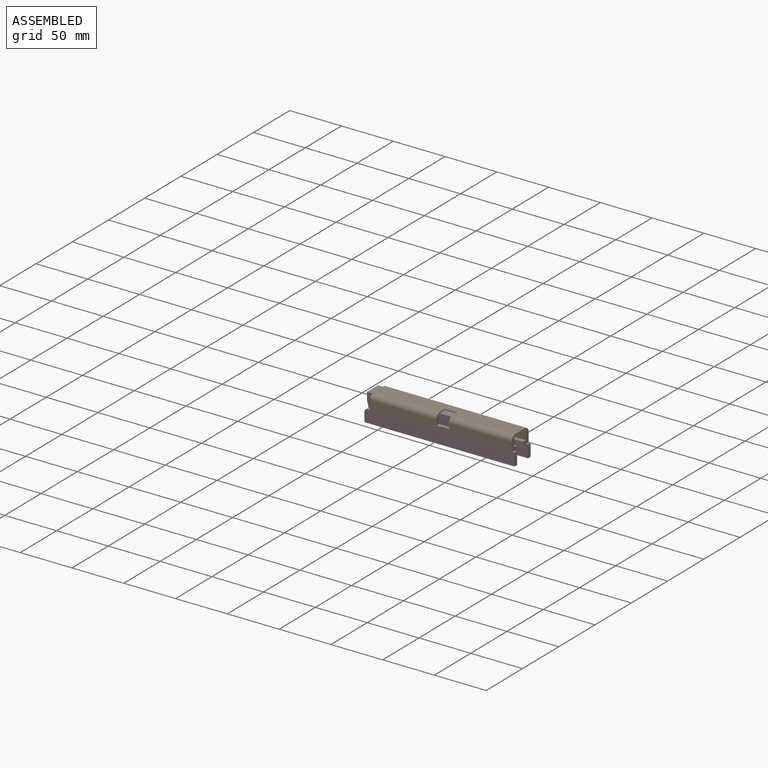
[diagram: assembled view]
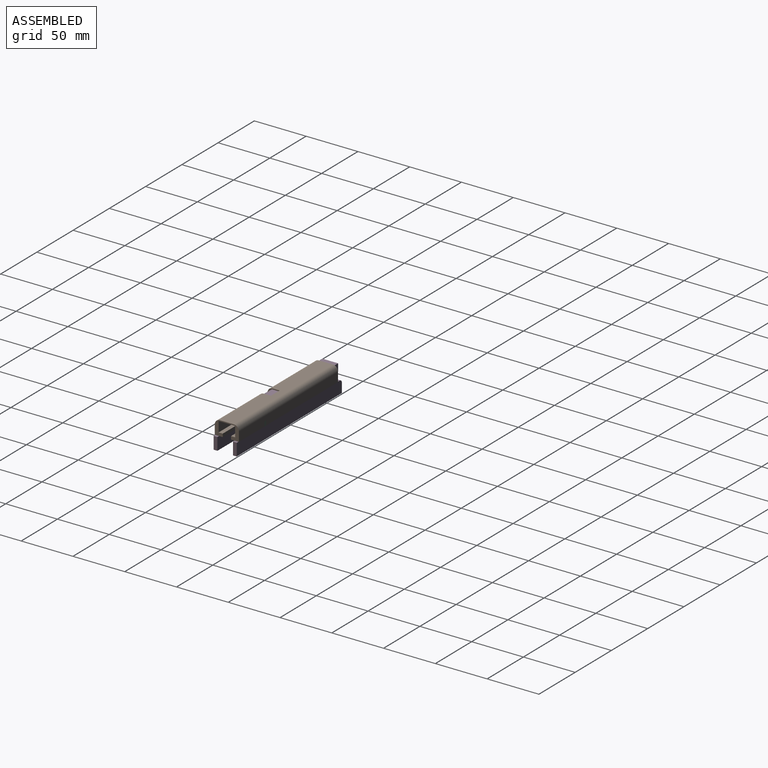
[diagram: assembled view, second angle]
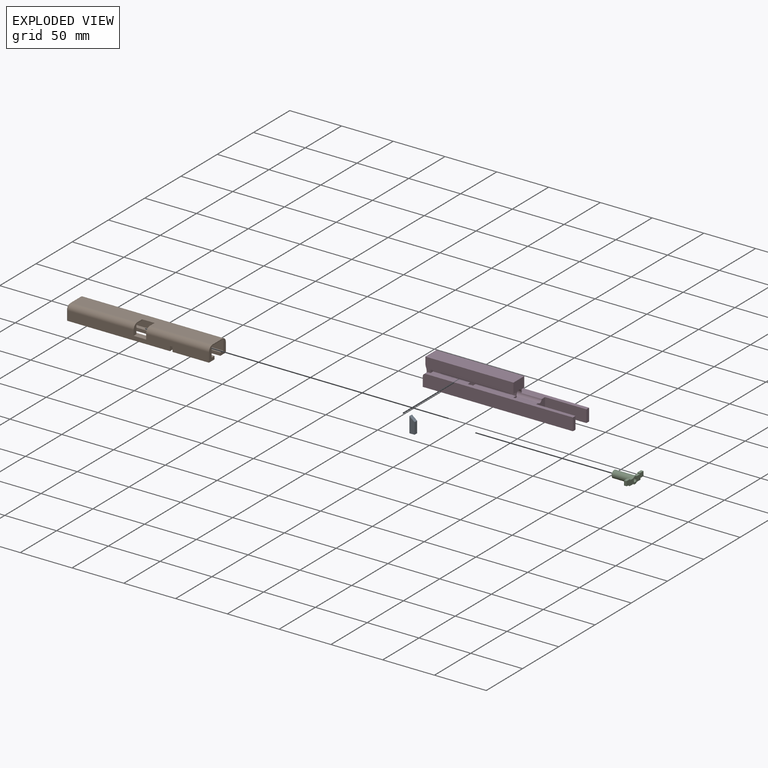
[diagram: exploded view]
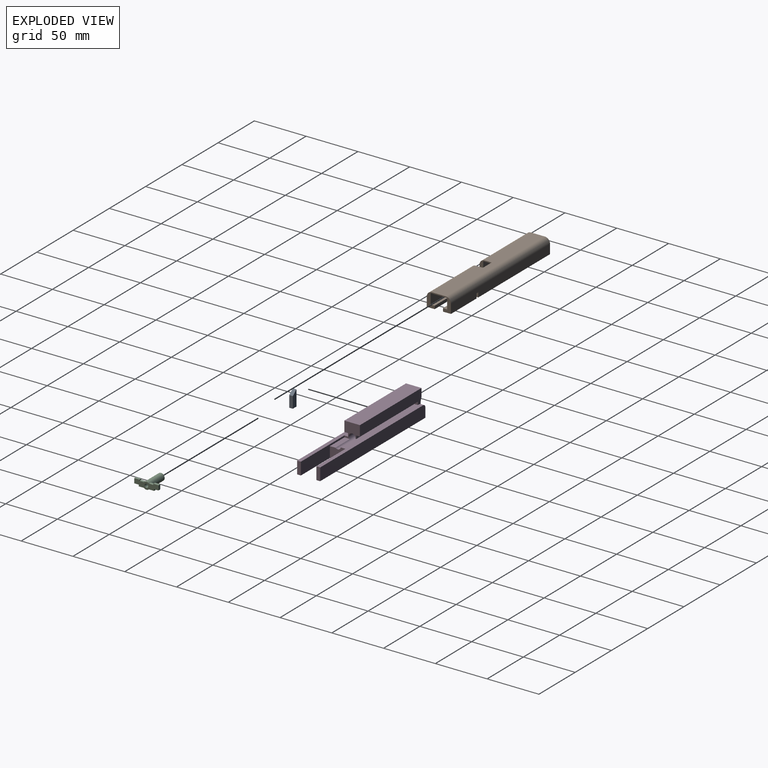
[diagram: exploded view, second angle]
ASSEMBLY  parts=4 mates=3
PART A: 6 faces, bbox 3.5x5x15 mm
  f0: plane 15x3.5mm, normal (0,-1,0), area 52.5mm2, adj f1,f3,f4,f5
  f1: plane 5x3.5mm, normal (0,0,-1), area 17.5mm2, adj f0,f2,f4,f5
  f2: plane 11x3.5mm, normal (0,1,0), area 38.5mm2, adj f1,f3,f4,f5
  f3: plane 5x4mm, normal (0,0.62,0.78), area 22.4mm2, adj f0,f2,f4,f5
  f4: plane 15x5mm, normal (1,0,0), area 65mm2, adj f0,f1,f2,f3
  f5: plane 15x5mm, normal (-1,0,0), area 65mm2, adj f0,f1,f2,f3
PART B: 55 faces, bbox 137.7x23.3x14 mm
  f0: plane 35x3mm, normal (0,1,0), area 104.9mm2, adj f2,f10,f14,f52,f53
  f1: plane 60x4mm, normal (0,0,1), area 240mm2, adj f7,f13,f18,f51
  f2: plane 100x7.67mm, normal (0,0,-1), area 742.2mm2, adj f0,f6,f7,f10,f13,f18,f26,f53
  f3: plane 16x9.5mm, normal (1,0,0), area 146.2mm2, adj f31,f32,f33,f34,f35,f36,f37,f43
  f4: plane 7.67x4.5mm, normal (1,0,0), area 28.5mm2, adj f11,f12,f15,f16,f17,f37
  f5: plane 136.7x13.33mm, normal (0,0,1), area 1742.7mm2, adj f9,f20,f21,f24,f28,f29,f30,f49
  f6: plane 136.7x9mm, normal (0,-1,0), area 1159.1mm2, adj f2,f9,f18,f21,f26,f27,f29,f30
  f7: plane 100x13mm, normal (0,1,0), area 907.2mm2, adj f1,f2,f8,f10,f14,f18,f25,f27
  f8: plane 100x16mm, normal (0,0,-1), area 1503.8mm2, adj f7,f15,f23,f24,f25,f28,f29,f30
  f9: cylinder r=5mm len=64mm, axis (1,0,0), area 502.7mm2, adj f5,f6,f25,f29
  f10: plane 12.77x6.67mm, normal (-1,0,0), area 43.3mm2, adj f0,f2,f7,f14,f25,f26
  f11: plane 100x7.67mm, normal (0,0,-1), area 766.2mm2, adj f4,f12,f17,f19,f22
  f12: plane 136.7x9mm, normal (0,1,0), area 1219mm2, adj f4,f11,f20,f22,f37,f48,f49,f50
  f13: plane 60x3mm, normal (0,1,0), area 179.9mm2, adj f1,f2,f18,f51,f54
  f14: plane 35x4mm, normal (0,0,1), area 140mm2, adj f0,f7,f10,f52
  f15: plane 100x10mm, normal (0,-1,0), area 1000mm2, adj f4,f8,f16,f19,f23,f38
  f16: plane 100x4mm, normal (0,0,1), area 400mm2, adj f4,f15,f17,f19
  f17: plane 100x3mm, normal (0,-1,0), area 300mm2, adj f4,f11,f16,f19
  f18: plane 7.67x4.5mm, normal (1,0,0), area 28.5mm2, adj f1,f2,f6,f7,f13,f31
  f19: plane 12.77x6.67mm, normal (-1,0,0), area 43.3mm2, adj f11,f15,f16,f17,f22,f23
  f20: cylinder r=5mm len=136.7mm, axis (-1,0,0), area 1073.6mm2, adj f5,f12,f23,f49
  f21: cylinder r=5mm len=60.7mm, axis (1,0,0), area 476.7mm2, adj f5,f6,f30,f49
  f22: plane 9x1mm, normal (-0.71,0.71,0), area 12.7mm2, adj f11,f12,f19,f23
  f23: cone r=4mm half-angle=45deg, axis (1,0,0), area 9.9mm2, adj f8,f15,f19,f20,f22,f24
  f24: plane 13.33x1mm, normal (-0.71,0,0.71), area 18.9mm2, adj f5,f8,f23,f25
  f25: cone r=4mm half-angle=45deg, axis (1,0,0), area 9.9mm2, adj f7,f8,f9,f10,f24,f26
  f26: plane 9x1mm, normal (-0.71,-0.71,0), area 12.7mm2, adj f2,f6,f10,f25
  f27: plane 12x3.67mm, normal (0,0,1), area 44mm2, adj f6,f7,f29,f30
  f28: plane 12x1mm, normal (0,-1,0), area 12mm2, adj f5,f8,f29,f30
  f29: plane 11.67x10mm, normal (1,0,0), area 39.3mm2, adj f5,f6,f7,f8,f9,f27,f28
  f30: plane 11.67x10mm, normal (-1,0,0), area 39.3mm2, adj f5,f6,f7,f8,f21,f27,f28
  f31: plane 5x2.5mm, normal (0,0,-1), area 12.5mm2, adj f3,f6,f18,f32,f38,f39
  f32: plane 2.5x1mm, normal (0,-1,0), area 2.5mm2, adj f3,f31,f33,f38
  f33: plane 4.32x2.5mm, normal (0,0,-1), area 10.8mm2, adj f3,f32,f34,f38
  f34: cylinder r=3.3mm len=4.69mm, axis (-1,0,0), area 13.1mm2, adj f3,f33,f35,f38
  f35: plane 4.32x2.5mm, normal (0,0,-1), area 10.8mm2, adj f3,f34,f36,f38
  f36: plane 2.5x1mm, normal (0,1,0), area 2.5mm2, adj f3,f35,f37,f38
  f37: plane 5x2.5mm, normal (0,0,-1), area 12.5mm2, adj f3,f4,f12,f36,f38,f50
  f38: plane 16x9.5mm, normal (-1,0,0), area 146.2mm2, adj f7,f8,f15,f31,f32,f33,f34,f35
  f39: plane 7.67x4.5mm, normal (-1,0,0), area 28.5mm2, adj f6,f31,f40,f41,f42,f43
  f40: plane 35.2x7.67mm, normal (0,0,-1), area 269.9mm2, adj f6,f39,f41,f49
  f41: plane 35.2x3mm, normal (0,1,0), area 105.6mm2, adj f39,f40,f42,f49
  f42: plane 35.2x4mm, normal (0,0,1), area 140.8mm2, adj f39,f41,f43,f49
  f43: plane 35.2x10mm, normal (0,1,0), area 352mm2, adj f3,f39,f42,f44,f49
  f44: plane 35.2x16mm, normal (0,0,-1), area 563.2mm2, adj f3,f43,f45,f49
  f45: plane 35.2x10mm, normal (0,-1,0), area 352mm2, adj f3,f44,f46,f49,f50
  f46: plane 35.2x4mm, normal (0,0,1), area 140.8mm2, adj f45,f47,f49,f50
  f47: plane 35.2x3mm, normal (0,-1,0), area 105.6mm2, adj f46,f48,f49,f50
  f48: plane 35.2x7.67mm, normal (0,0,-1), area 269.9mm2, adj f12,f47,f49,f50
  f49: plane 23.33x14mm, normal (1,0,0), area 131.9mm2, adj f5,f6,f12,f20,f21,f40,f41,f42
  f50: plane 7.67x4.5mm, normal (-1,0,0), area 28.5mm2, adj f12,f37,f45,f46,f47,f48
  f51: plane 4x2.5mm, normal (-1,0,0), area 10mm2, adj f1,f7,f13,f54
  f52: plane 4x2.5mm, normal (1,0,0), area 10mm2, adj f0,f7,f14,f53
  f53: plane 4x0.5mm, normal (0.71,0,-0.71), area 2.8mm2, adj f0,f2,f7,f52
  f54: plane 4x0.5mm, normal (-0.71,0,-0.71), area 2.8mm2, adj f2,f7,f13,f51
PART C: 24 faces, bbox 23.3x7x20.3 mm
  f0: plane 5.9x5.9mm, normal (0,0,1), area 7.7mm2, adj f20,f22
  f1: plane 9.22x6mm, normal (0,0,1), area 41.1mm2, adj f2,f3,f4,f5,f6,f14,f15,f16
  f2: plane 5x2.5mm, normal (0,1,0), area 12.5mm2, adj f1,f3,f16,f19
  f3: plane 4.5x2.5mm, normal (-1,0,0), area 11.3mm2, adj f1,f2,f4,f19
  f4: plane 4.25x2.5mm, normal (0,-1,0), area 10.6mm2, adj f1,f3,f5,f19
  f5: plane 2.5x1.5mm, normal (-1,0,0), area 3.8mm2, adj f1,f4,f6,f19
  f6: plane 4.97x2.5mm, normal (0,-1,0), area 12.4mm2, adj f1,f5,f14,f19
  f7: plane 4.97x2.5mm, normal (0,-1,0), area 12.4mm2, adj f8,f14,f18,f19
  f8: plane 2.5x1.5mm, normal (1,0,0), area 3.8mm2, adj f7,f9,f18,f19
  f9: plane 4.25x2.5mm, normal (0,-1,0), area 10.6mm2, adj f8,f10,f18,f19
  f10: plane 4.5x2.5mm, normal (1,0,0), area 11.2mm2, adj f9,f11,f18,f19
  f11: plane 5x2.5mm, normal (0,1,0), area 12.5mm2, adj f10,f12,f18,f19
  f12: plane 2.5x1mm, normal (-1,0,0), area 2.5mm2, adj f11,f13,f18,f19
  f13: plane 4.22x2.5mm, normal (0,1,0), area 10.5mm2, adj f12,f14,f18,f19
  f14: cylinder r=3.5mm len=20.25mm, axis (0,0,-1), area 417.5mm2, adj f1,f6,f7,f13,f15,f18,f19,f23
  f15: plane 4.22x2.5mm, normal (0,1,0), area 10.5mm2, adj f1,f14,f16,f19
  f16: plane 2.5x1mm, normal (1,0,0), area 2.5mm2, adj f1,f2,f15,f19
  f17: cylinder r=1.75mm len=11.25mm, axis (0,0,-1), area 123.7mm2, adj f19,f21
  f18: plane 9.22x6mm, normal (0,0,1), area 41.1mm2, adj f7,f8,f9,f10,f11,f12,f13,f14
  f19: plane 23.33x7mm, normal (0,0,-1), area 111mm2, adj f2,f3,f4,f5,f6,f7,f8,f9
  f20: cylinder r=2.5mm len=8.75mm, axis (0,0,-1), area 137.4mm2, adj f0,f21
  f21: plane 5x5mm, normal (0,0,1), area 10mm2, adj f17,f20
  f22: cylinder r=2.95mm len=17.75mm, axis (0,0,-1), area 329mm2, adj f0,f23
  f23: plane 7x7mm, normal (0,0,1), area 11.1mm2, adj f14,f22
PART D: 37 faces, bbox 145.2x22.5x25.2 mm
  f0: plane 145x22.33mm, normal (0,0,-1), area 2620.6mm2, adj f3,f4,f7,f13,f19,f25,f26,f27
  f1: plane 85.16x13.79mm, normal (0,-1,0), area 860.9mm2, adj f5,f6,f8,f13,f14,f15,f21,f23
  f2: plane 85.16x13.79mm, normal (0,1,0), area 860.9mm2, adj f5,f9,f12,f13,f15,f16,f21,f23
  f3: plane 14.99x12mm, normal (1,0,0), area 160.9mm2, adj f0,f9,f18,f19,f20,f25
  f4: plane 22.33x9mm, normal (-1,0,0), area 126.3mm2, adj f0,f22,f24,f26,f29,f30,f32,f33
  f5: plane 85x15mm, normal (0,0,1), area 1275mm2, adj f1,f2,f13,f15
  f6: plane 80x3.5mm, normal (0,0,-1), area 280mm2, adj f1,f7,f13,f14
  f7: plane 80x15mm, normal (0,-1,0), area 300mm2, adj f0,f6,f8,f13,f14,f34,f35
  f8: plane 142x7.17mm, normal (0,0,1), area 783.2mm2, adj f1,f7,f13,f14,f28,f30,f31,f32
  f9: plane 142x8.21mm, normal (0,0,1), area 891.5mm2, adj f2,f3,f10,f13,f16,f17,f20,f25
  f10: plane 80x3mm, normal (0,1,0), area 240mm2, adj f9,f12,f13,f16
  f11: cylinder r=3.25mm len=79.5mm, axis (-1,0,0), area 1623.4mm2, adj f13,f17,f21
  f12: plane 80x3.5mm, normal (0,0,-1), area 280mm2, adj f2,f10,f13,f16
  f13: plane 25x15mm, normal (1,0,0), area 161.7mm2, adj f0,f1,f2,f5,f6,f7,f8,f9
  f14: plane 3.5x3mm, normal (1,0,0), area 10.5mm2, adj f1,f6,f7,f8
  f15: plane 15x6.54mm, normal (-1,0,0), area 60.3mm2, adj f1,f2,f5,f23
  f16: plane 3.5x3mm, normal (1,0,0), area 10.5mm2, adj f2,f9,f10,f12
  f17: plane 5.67x2.75mm, normal (-1,0,0), area 1.7mm2, adj f9,f11,f18,f20
  f18: plane 20x5.37mm, normal (0,0,1), area 107.4mm2, adj f3,f13,f17,f19,f20
  f19: plane 20x10.38mm, normal (0,-1,0), area 207.6mm2, adj f0,f3,f13,f18
  f20: cylinder r=3mm len=20mm, axis (-1,0,0), area 131.3mm2, adj f3,f9,f17,f18
  f21: cone r=8.75mm half-angle=45deg, axis (-1,0,0), area 241.4mm2, adj f1,f2,f11,f22,f23,f24,f29
  f22: torus R=9.58mm, axis (1,0,0), area 28.5mm2, adj f4,f21,f24,f29
  f23: torus R=9.58mm, axis (1,0,0), area 28.5mm2, adj f1,f2,f15,f21
  f24: plane 5.04x1.37mm, normal (0,-1,0), area 1.7mm2, adj f4,f21,f22,f33
  f25: plane 40x12mm, normal (0,-1,0), area 480mm2, adj f0,f3,f9,f27
  f26: plane 145x12mm, normal (0,1,0), area 1738.1mm2, adj f0,f4,f9,f27,f33
  f27: plane 12x3.67mm, normal (1,0,0), area 44mm2, adj f0,f9,f25,f26
  f28: plane 60x12mm, normal (0,1,0), area 720mm2, adj f0,f8,f13,f31
  f29: plane 5.04x1.37mm, normal (0,1,0), area 1.7mm2, adj f4,f21,f22,f32
  f30: plane 145x12mm, normal (0,-1,0), area 1738.1mm2, adj f0,f4,f8,f31,f32
  f31: plane 12x3.67mm, normal (1,0,0), area 44mm2, adj f0,f8,f28,f30
  f32: cylinder r=3mm len=3.67mm, axis (0,-1,0), area 17.3mm2, adj f1,f4,f8,f29,f30
  f33: cylinder r=3mm len=3.67mm, axis (0,-1,0), area 17.3mm2, adj f2,f4,f9,f24,f26
  f34: plane 12x3.5mm, normal (1,0,0), area 42mm2, adj f0,f7,f8,f36
  f35: plane 12x3.5mm, normal (-1,0,0), area 42mm2, adj f0,f7,f8,f36
  f36: plane 12x5mm, normal (0,1,0), area 60mm2, adj f0,f8,f34,f35
PLACE A rot(axis=(0,0,-1),90deg) t=(36,-4,-12.67)mm
PLACE B t=(0,0,-0.5)mm
PLACE C rot(axis=(0.58,-0.58,-0.58),120deg) t=(101.25,0,0.5)mm
PLACE D at identity fixed
MATE slider A.f1 <-> D.f0  axis (0,0,-1) through (38.5,-5.75,-12.67)mm
MATE fastened C.f1 <-> B.f4  axis (-1,0,0) through (100,11.67,-0.5)mm
MATE slider D.f15 <-> B.f38  axis (-1,0,0) through (-5,0,12.5)mm
